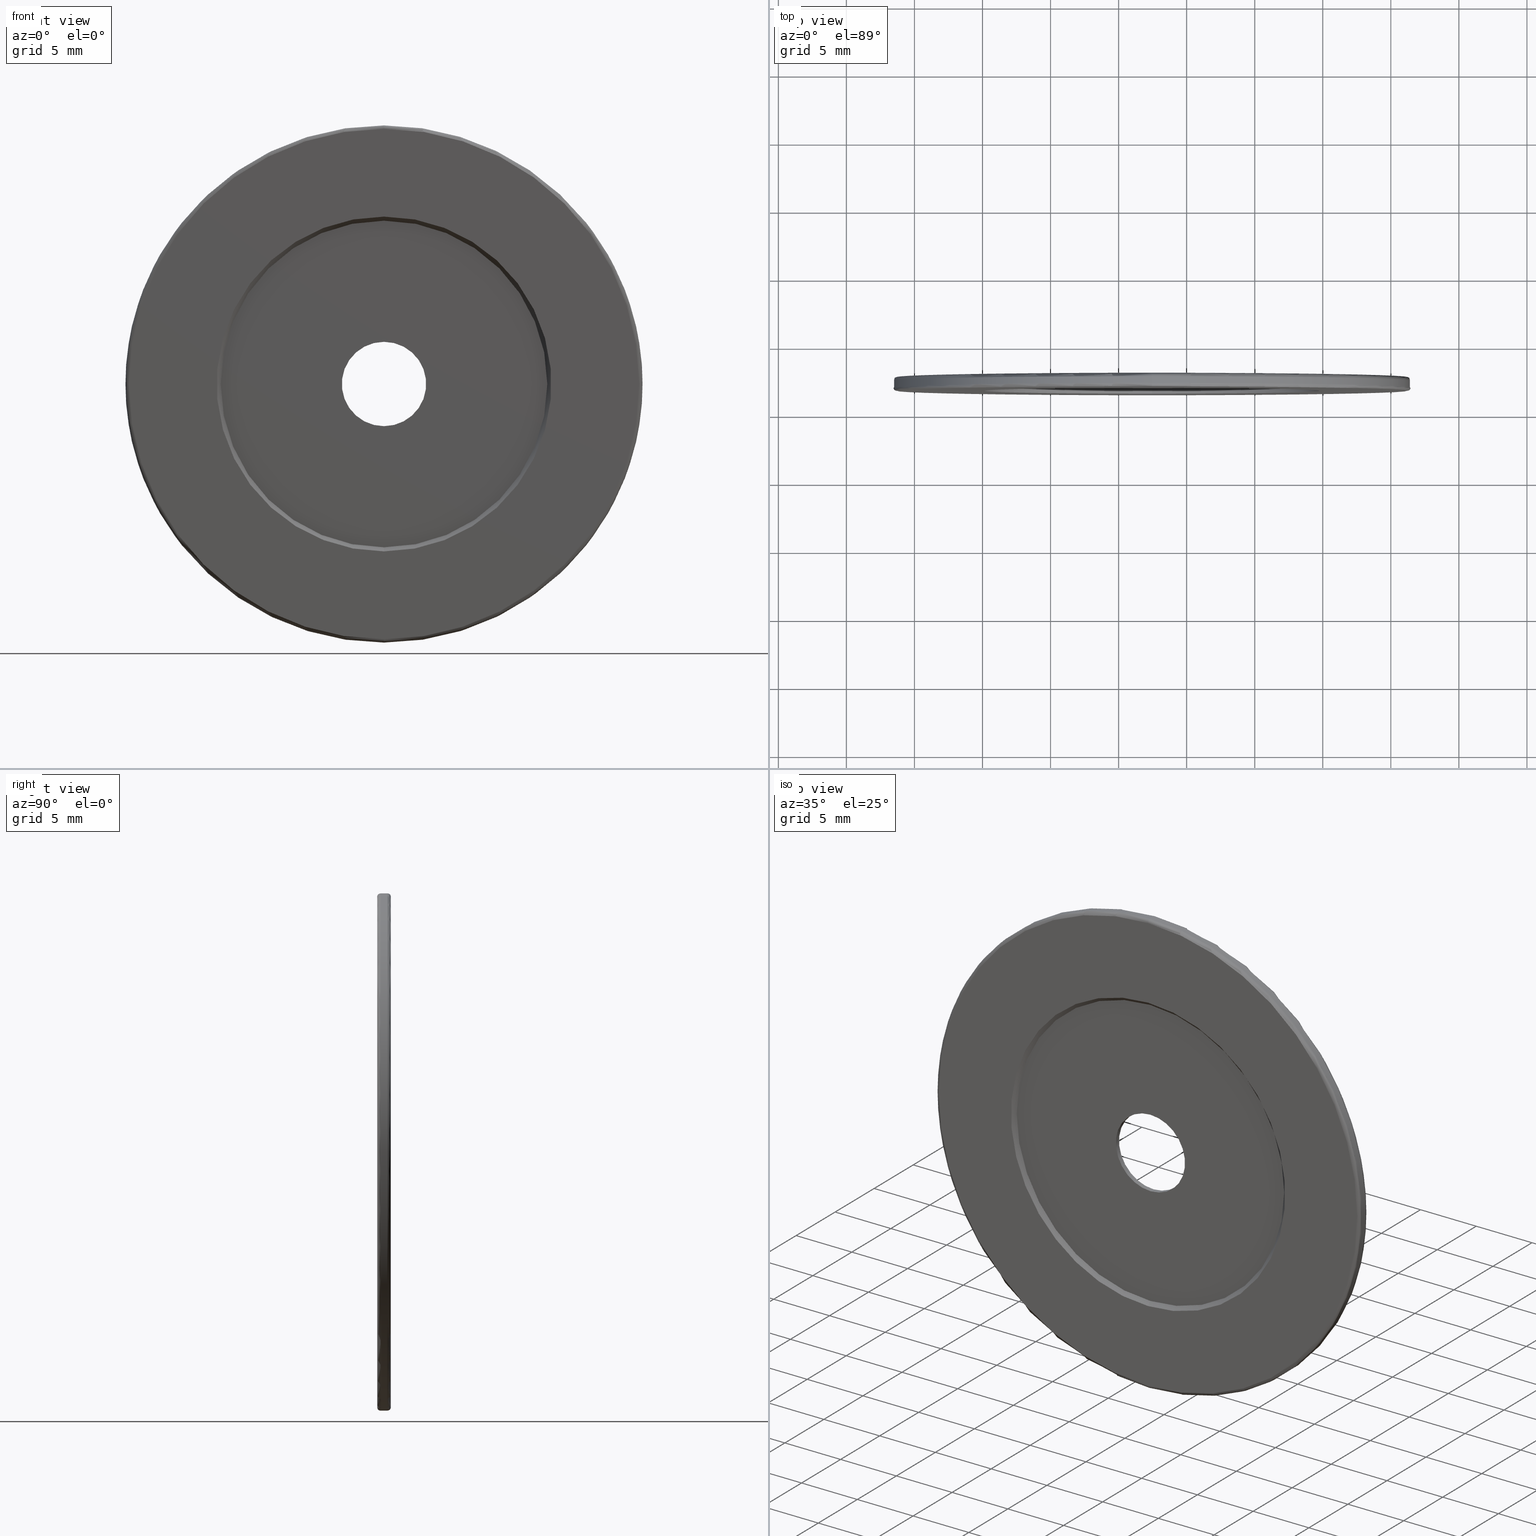
[diagram: canonical four-view strip — front | top / right | iso, engineering-drawing reading convention]
A machine part, canonical four-view strip (front | top / right | iso — engineering-drawing reading convention). The complete STEP part file that produces these views, byte-faithful:
ISO-10303-21;
HEADER;
FILE_DESCRIPTION (( 'STEP AP203' ),
    '1' );
FILE_NAME ('1.4.2.114_ZGH-38-DK1.STEP',
    '2024-04-06T05:19:16',
    ( '' ),
    ( '' ),
    'SwSTEP 2.0',
    'SolidWorks 2021',
    '' );
FILE_SCHEMA (( 'CONFIG_CONTROL_DESIGN' ));
ENDSEC;

DATA;
#1 = APPROVAL_ROLE ( '' ) ;
#2 = DIRECTION ( 'NONE',  ( 0.000000000000000000, 0.000000000000000000, 1.000000000000000000 ) ) ;
#3 = PRODUCT_RELATED_PRODUCT_CATEGORY ( 'detail', '', ( #23 ) ) ;
#4 = APPROVAL_DATE_TIME ( #122, #365 ) ;
#5 = AXIS2_PLACEMENT_3D ( 'NONE', #384, #288, #250 ) ;
#6 = DIRECTION ( 'NONE',  ( 0.000000000000000000, 0.000000000000000000, 1.000000000000000000 ) ) ;
#7 = AXIS2_PLACEMENT_3D ( 'NONE', #192, #509, #507 ) ;
#8 = APPLICATION_PROTOCOL_DEFINITION ( 'international standard', 'config_control_design', 1994, #498 ) ;
#9 = FACE_BOUND ( 'NONE', #230, .T. ) ;
#10 = DIRECTION ( 'NONE',  ( 0.000000000000000000, 0.000000000000000000, 1.000000000000000000 ) ) ;
#11 = ORIENTED_EDGE ( 'NONE', *, *, #379, .T. ) ;
#12 = CYLINDRICAL_SURFACE ( 'NONE', #166, 3.099999999999998757 ) ;
#13 = CC_DESIGN_PERSON_AND_ORGANIZATION_ASSIGNMENT ( #359, #169, ( #23 ) ) ;
#14 = DIRECTION ( 'NONE',  ( 0.000000000000000000, 1.000000000000000000, 0.000000000000000000 ) ) ;
#15 = ADVANCED_FACE ( 'NONE', ( #404, #358 ), #411, .T. ) ;
#16 = CARTESIAN_POINT ( 'NONE',  ( -7.546808913101044958, -3.143595127302728276, 19.00000000000000000 ) ) ;
#17 = SHAPE_DEFINITION_REPRESENTATION ( #424, #98 ) ;
#18 = DIRECTION ( 'NONE',  ( 0.000000000000000000, 1.000000000000000000, 0.000000000000000000 ) ) ;
#19 = ORIENTED_EDGE ( 'NONE', *, *, #33, .F. ) ;
#20 = EDGE_CURVE ( 'NONE', #417, #117, #195, .T. ) ;
#21 = APPROVAL_STATUS ( 'not_yet_approved' ) ;
#22 = CIRCLE ( 'NONE', #47, 12.00000000000000355 ) ;
#23 = PRODUCT ( '1.4.2.114_ZGH-38-DK1', '1.4.2.114_ZGH-38-DK1', '', ( #401 ) ) ;
#24 = ORGANIZATION ( 'δָ��', 'δָ��', '' ) ;
#25 = DIRECTION ( 'NONE',  ( 8.659560562354833018E-17, 0.7071067811865556774, -0.7071067811865393571 ) ) ;
#26 = EDGE_CURVE ( 'NONE', #472, #430, #405, .T. ) ;
#27 = PERSON_AND_ORGANIZATION ( #272, #24 ) ;
#28 = DIRECTION ( 'NONE',  ( 0.000000000000000000, 0.000000000000000000, 1.000000000000000000 ) ) ;
#29 = DIRECTION ( 'NONE',  ( -0.000000000000000000, 1.000000000000000000, -0.000000000000000000 ) ) ;
#30 = ORIENTED_EDGE ( 'NONE', *, *, #329, .F. ) ;
#31 = DIRECTION ( 'NONE',  ( 0.000000000000000000, 0.000000000000000000, 1.000000000000000000 ) ) ;
#32 = CC_DESIGN_APPROVAL ( #365, ( #372 ) ) ;
#33 = EDGE_CURVE ( 'NONE', #472, #256, #203, .T. ) ;
#34 = ORIENTED_EDGE ( 'NONE', *, *, #227, .F. ) ;
#35 = DIRECTION ( 'NONE',  ( -0.000000000000000000, -1.000000000000000000, -0.000000000000000000 ) ) ;
#36 = EDGE_LOOP ( 'NONE', ( #271, #349, #466, #249 ) ) ;
#37 = CARTESIAN_POINT ( 'NONE',  ( -7.546808913101048510, -3.393595127302727832, 38.00000000000000000 ) ) ;
#38 = ORIENTED_EDGE ( 'NONE', *, *, #26, .T. ) ;
#39 = ADVANCED_FACE ( 'NONE', ( #330, #208 ), #413, .T. ) ;
#40 = CIRCLE ( 'NONE', #90, 3.099999999999998757 ) ;
#41 = DIRECTION ( 'NONE',  ( 0.000000000000000000, 1.000000000000000000, 0.000000000000000000 ) ) ;
#42 = AXIS2_PLACEMENT_3D ( 'NONE', #197, #273, #511 ) ;
#43 = ORIENTED_EDGE ( 'NONE', *, *, #453, .F. ) ;
#44 = VERTEX_POINT ( 'NONE', #286 ) ;
#45 =( NAMED_UNIT ( * ) PLANE_ANGLE_UNIT ( ) SI_UNIT ( $, .RADIAN. ) );
#46 = DIRECTION ( 'NONE',  ( 0.000000000000000000, -1.000000000000000000, 0.000000000000000000 ) ) ;
#47 = AXIS2_PLACEMENT_3D ( 'NONE', #52, #284, #449 ) ;
#48 = ORIENTED_EDGE ( 'NONE', *, *, #94, .T. ) ;
#49 = ADVANCED_FACE ( 'NONE', ( #483 ), #370, .T. ) ;
#50 =( GEOMETRIC_REPRESENTATION_CONTEXT ( 3 ) GLOBAL_UNCERTAINTY_ASSIGNED_CONTEXT ( ( #100 ) ) GLOBAL_UNIT_ASSIGNED_CONTEXT ( ( #490, #45, #204 ) ) REPRESENTATION_CONTEXT ( 'NONE', 'WORKASPACE' ) );
#51 = DIRECTION ( 'NONE',  ( 0.000000000000000000, 0.000000000000000000, 1.000000000000000000 ) ) ;
#52 = CARTESIAN_POINT ( 'NONE',  ( -7.546808913101048510, -2.693595127302727654, 38.00000000000000000 ) ) ;
#53 = EDGE_CURVE ( 'NONE', #74, #420, #452, .T. ) ;
#54 = COORDINATED_UNIVERSAL_TIME_OFFSET ( 8, 0, .AHEAD. ) ;
#55 = CARTESIAN_POINT ( 'NONE',  ( -7.546808913101048510, -2.393595127302727832, 38.00000000000000000 ) ) ;
#56 = EDGE_CURVE ( 'NONE', #112, #440, #408, .T. ) ;
#57 = DATE_AND_TIME ( #246, #149 ) ;
#58 = DIRECTION ( 'NONE',  ( -0.000000000000000000, -1.000000000000000000, -0.000000000000000000 ) ) ;
#59 = LINE ( 'NONE', #175, #431 ) ;
#60 = CC_DESIGN_DATE_AND_TIME_ASSIGNMENT ( #242, #407, ( #383 ) ) ;
#61 = DIRECTION ( 'NONE',  ( -0.000000000000000000, -1.000000000000000000, -0.000000000000000000 ) ) ;
#62 = VERTEX_POINT ( 'NONE', #322 ) ;
#63 = APPROVAL_PERSON_ORGANIZATION ( #495, #306, #415 ) ;
#64 = FACE_OUTER_BOUND ( 'NONE', #346, .T. ) ;
#65 = AXIS2_PLACEMENT_3D ( 'NONE', #459, #457, #28 ) ;
#66 = CIRCLE ( 'NONE', #266, 18.99999999999999645 ) ;
#67 = PERSON_AND_ORGANIZATION_ROLE ( 'design_supplier' ) ;
#68 = VECTOR ( 'NONE', #429, 1000.000000000000000 ) ;
#69 = FACE_OUTER_BOUND ( 'NONE', #158, .T. ) ;
#70 = ORIENTED_EDGE ( 'NONE', *, *, #56, .F. ) ;
#71 = CARTESIAN_POINT ( 'NONE',  ( -7.546808913101048510, -3.143595127302728276, 38.00000000000000000 ) ) ;
#72 = ORIENTED_EDGE ( 'NONE', *, *, #179, .T. ) ;
#73 = LINE ( 'NONE', #188, #267 ) ;
#74 = VERTEX_POINT ( 'NONE', #127 ) ;
#75 = AXIS2_PLACEMENT_3D ( 'NONE', #339, #373, #145 ) ;
#76 = CARTESIAN_POINT ( 'NONE',  ( -7.546808913101048510, -2.693595127302736536, 50.00000000000000000 ) ) ;
#77 = AXIS2_PLACEMENT_3D ( 'NONE', #363, #448, #92 ) ;
#78 = EDGE_LOOP ( 'NONE', ( #30, #232, #34, #378 ) ) ;
#79 = DIRECTION ( 'NONE',  ( 0.000000000000000000, 0.000000000000000000, 1.000000000000000000 ) ) ;
#80 = ORIENTED_EDGE ( 'NONE', *, *, #186, .T. ) ;
#81 = DIRECTION ( 'NONE',  ( 0.000000000000000000, 0.000000000000000000, -1.000000000000000000 ) ) ;
#82 = EDGE_LOOP ( 'NONE', ( #264, #38 ) ) ;
#83 = CYLINDRICAL_SURFACE ( 'NONE', #464, 19.00000000000000000 ) ;
#84 = AXIS2_PLACEMENT_3D ( 'NONE', #502, #109, #393 ) ;
#85 = ORIENTED_EDGE ( 'NONE', *, *, #385, .F. ) ;
#86 = DIRECTION ( 'NONE',  ( 0.000000000000000000, 0.000000000000000000, -1.000000000000000000 ) ) ;
#87 = CARTESIAN_POINT ( 'NONE',  ( -7.546808913101048510, -2.643595127302727832, 56.74999999999999289 ) ) ;
#88 = CARTESIAN_POINT ( 'NONE',  ( -7.546808913101048510, -3.393595127302727832, 38.00000000000000000 ) ) ;
#89 = CARTESIAN_POINT ( 'NONE',  ( -7.546808913101048510, -3.093595127302728010, 25.99999999999999645 ) ) ;
#90 = AXIS2_PLACEMENT_3D ( 'NONE', #335, #99, #297 ) ;
#91 = DIRECTION ( 'NONE',  ( 0.000000000000000000, 1.000000000000000000, 0.000000000000000000 ) ) ;
#92 = DIRECTION ( 'NONE',  ( 1.000000000000000000, 0.000000000000000000, 0.000000000000000000 ) ) ;
#93 = CARTESIAN_POINT ( 'NONE',  ( -7.546808913101046734, -3.093595127302728010, 50.00000000000000000 ) ) ;
#94 = EDGE_CURVE ( 'NONE', #440, #178, #462, .T. ) ;
#95 = PERSON_AND_ORGANIZATION ( #272, #24 ) ;
#96 = DIRECTION ( 'NONE',  ( 0.000000000000000000, 0.000000000000000000, -1.000000000000000000 ) ) ;
#97 = DIRECTION ( 'NONE',  ( -0.000000000000000000, 1.000000000000000000, -0.000000000000000000 ) ) ;
#98 = MANIFOLD_SURFACE_SHAPE_REPRESENTATION ( '1.4.2.114_ZGH-38-DK1', ( #316, #77 ), #50 ) ;
#99 = DIRECTION ( 'NONE',  ( -0.000000000000000000, 1.000000000000000000, -0.000000000000000000 ) ) ;
#100 = UNCERTAINTY_MEASURE_WITH_UNIT (LENGTH_MEASURE( 1.000000000000000082E-05 ), #490, 'distance_accuracy_value', 'NONE');
#101 = ORIENTED_EDGE ( 'NONE', *, *, #506, .F. ) ;
#102 = DIRECTION ( 'NONE',  ( 0.000000000000000000, 0.000000000000000000, 1.000000000000000000 ) ) ;
#103 = CARTESIAN_POINT ( 'NONE',  ( -7.546808913101048510, -2.393595127302727832, 38.00000000000000000 ) ) ;
#104 = AXIS2_PLACEMENT_3D ( 'NONE', #142, #107, #332 ) ;
#105 = AXIS2_PLACEMENT_3D ( 'NONE', #395, #300, #345 ) ;
#106 = AXIS2_PLACEMENT_3D ( 'NONE', #118, #41, #259 ) ;
#107 = DIRECTION ( 'NONE',  ( 0.000000000000000000, 1.000000000000000000, 0.000000000000000000 ) ) ;
#108 = EDGE_CURVE ( 'NONE', #121, #308, #362, .T. ) ;
#109 = DIRECTION ( 'NONE',  ( 0.000000000000000000, 1.000000000000000000, 0.000000000000000000 ) ) ;
#110 = ORIENTED_EDGE ( 'NONE', *, *, #108, .F. ) ;
#111 = CARTESIAN_POINT ( 'NONE',  ( -7.546808913101045846, -2.643595127302727832, 56.99999999999999289 ) ) ;
#112 = VERTEX_POINT ( 'NONE', #247 ) ;
#113 = OPEN_SHELL ( 'NONE', ( #213, #427, #441, #49, #200, #409, #15, #218, #126, #184, #493, #265, #39, #234, #141, #512 ) ) ;
#114 = AXIS2_PLACEMENT_3D ( 'NONE', #71, #187, #231 ) ;
#115 = DIRECTION ( 'NONE',  ( 0.000000000000000000, 0.000000000000000000, 1.000000000000000000 ) ) ;
#116 = APPROVAL_PERSON_ORGANIZATION ( #323, #340, #446 ) ;
#117 = VERTEX_POINT ( 'NONE', #240 ) ;
#118 = CARTESIAN_POINT ( 'NONE',  ( -7.546808913101048510, -2.643595127302727832, 38.00000000000000000 ) ) ;
#119 = VERTEX_POINT ( 'NONE', #442 ) ;
#120 = LINE ( 'NONE', #355, #68 ) ;
#121 = VERTEX_POINT ( 'NONE', #206 ) ;
#122 = DATE_AND_TIME ( #317, #416 ) ;
#123 = CIRCLE ( 'NONE', #84, 3.099999999999998757 ) ;
#124 = APPROVAL_PERSON_ORGANIZATION ( #399, #365, #1 ) ;
#125 = DIRECTION ( 'NONE',  ( 1.000000000000000000, -0.000000000000000000, 1.224646799147353207E-16 ) ) ;
#126 = ADVANCED_FACE ( 'NONE', ( #364, #9 ), #168, .F. ) ;
#127 = CARTESIAN_POINT ( 'NONE',  ( -7.546808913101046734, -3.393595127302727832, 50.29999999999999716 ) ) ;
#128 = CARTESIAN_POINT ( 'NONE',  ( -7.546808913101048510, -3.393595127302727832, 38.00000000000000000 ) ) ;
#129 = DIRECTION ( 'NONE',  ( 0.000000000000000000, -0.000000000000000000, 1.000000000000000000 ) ) ;
#130 = AXIS2_PLACEMENT_3D ( 'NONE', #428, #219, #338 ) ;
#131 = EDGE_CURVE ( 'NONE', #155, #119, #22, .T. ) ;
#132 = CARTESIAN_POINT ( 'NONE',  ( -7.546808913101048510, -3.393595127302727832, 38.00000000000000000 ) ) ;
#133 = AXIS2_PLACEMENT_3D ( 'NONE', #504, #223, #467 ) ;
#134 = AXIS2_PLACEMENT_3D ( 'NONE', #403, #484, #486 ) ;
#135 = EDGE_LOOP ( 'NONE', ( #137, #477, #390, #225 ) ) ;
#136 = DIRECTION ( 'NONE',  ( -0.000000000000000000, 1.000000000000000000, -0.000000000000000000 ) ) ;
#137 = ORIENTED_EDGE ( 'NONE', *, *, #248, .T. ) ;
#138 = AXIS2_PLACEMENT_3D ( 'NONE', #463, #97, #212 ) ;
#139 = DIRECTION ( 'NONE',  ( 0.000000000000000000, 0.000000000000000000, 1.000000000000000000 ) ) ;
#140 = VERTEX_POINT ( 'NONE', #93 ) ;
#141 = ADVANCED_FACE ( 'NONE', ( #181, #64 ), #144, .T. ) ;
#142 = CARTESIAN_POINT ( 'NONE',  ( -7.546808913101048510, -2.693595127302727654, 38.00000000000000000 ) ) ;
#143 = PERSON_AND_ORGANIZATION_ROLE ( 'classification_officer' ) ;
#144 = PLANE ( 'NONE',  #104 ) ;
#145 = DIRECTION ( 'NONE',  ( 0.000000000000000000, 0.000000000000000000, 1.000000000000000000 ) ) ;
#146 = ORIENTED_EDGE ( 'NONE', *, *, #94, .F. ) ;
#147 = AXIS2_PLACEMENT_3D ( 'NONE', #55, #91, #129 ) ;
#148 = CONICAL_SURFACE ( 'NONE', #283, 12.00000000000000355, 0.7853981633974367327 ) ;
#149 = LOCAL_TIME ( 13, 19, 16.00000000000000000, #376 ) ;
#150 = FACE_OUTER_BOUND ( 'NONE', #135, .T. ) ;
#151 = ORIENTED_EDGE ( 'NONE', *, *, #343, .T. ) ;
#152 = DIRECTION ( 'NONE',  ( -0.000000000000000000, -1.000000000000000000, -0.000000000000000000 ) ) ;
#153 = ORIENTED_EDGE ( 'NONE', *, *, #227, .T. ) ;
#154 = CARTESIAN_POINT ( 'NONE',  ( -7.546808913101048510, -3.093595127302728010, 38.00000000000000000 ) ) ;
#155 = VERTEX_POINT ( 'NONE', #293 ) ;
#156 = TOROIDAL_SURFACE ( 'NONE', #217, 18.75000000000000000, 0.2500000000000000000 ) ;
#157 = CARTESIAN_POINT ( 'NONE',  ( -7.546808913101045846, -2.393595127302727832, 19.25000000000000000 ) ) ;
#158 = EDGE_LOOP ( 'NONE', ( #19, #43, #151, #387 ) ) ;
#159 = DIRECTION ( 'NONE',  ( -0.000000000000000000, -1.000000000000000000, -0.000000000000000000 ) ) ;
#160 = ORIENTED_EDGE ( 'NONE', *, *, #261, .T. ) ;
#161 = COORDINATED_UNIVERSAL_TIME_OFFSET ( 8, 0, .AHEAD. ) ;
#162 = CARTESIAN_POINT ( 'NONE',  ( -7.546808913101045846, -2.643595127302727832, 19.25000000000000000 ) ) ;
#163 = EDGE_CURVE ( 'NONE', #155, #277, #381, .T. ) ;
#164 = AXIS2_PLACEMENT_3D ( 'NONE', #491, #58, #96 ) ;
#165 = COORDINATED_UNIVERSAL_TIME_OFFSET ( 8, 0, .AHEAD. ) ;
#166 = AXIS2_PLACEMENT_3D ( 'NONE', #128, #366, #51 ) ;
#167 = DIRECTION ( 'NONE',  ( -0.000000000000000000, 1.000000000000000000, -0.000000000000000000 ) ) ;
#168 = PLANE ( 'NONE',  #233 ) ;
#169 = PERSON_AND_ORGANIZATION_ROLE ( 'design_owner' ) ;
#170 = CARTESIAN_POINT ( 'NONE',  ( -7.546808913101048510, -3.393595127302727832, 34.89999999999999858 ) ) ;
#171 = CALENDAR_DATE ( 2024, 6, 4 ) ;
#172 = AXIS2_PLACEMENT_3D ( 'NONE', #103, #492, #139 ) ;
#173 = DIRECTION ( 'NONE',  ( 0.000000000000000000, 0.000000000000000000, -1.000000000000000000 ) ) ;
#174 = AXIS2_PLACEMENT_3D ( 'NONE', #419, #61, #215 ) ;
#175 = CARTESIAN_POINT ( 'NONE',  ( -7.546808913101048510, -3.393595127302727832, 41.09999999999999432 ) ) ;
#176 = SECURITY_CLASSIFICATION_LEVEL ( 'unclassified' ) ;
#177 = FACE_OUTER_BOUND ( 'NONE', #191, .T. ) ;
#178 = VERTEX_POINT ( 'NONE', #185 ) ;
#179 = EDGE_CURVE ( 'NONE', #210, #112, #40, .T. ) ;
#180 = AXIS2_PLACEMENT_3D ( 'NONE', #450, #325, #487 ) ;
#181 = FACE_BOUND ( 'NONE', #334, .T. ) ;
#182 = CARTESIAN_POINT ( 'NONE',  ( -7.546808913101048510, -3.393595127302727832, 38.00000000000000000 ) ) ;
#183 = DESIGN_CONTEXT ( 'detailed design', #498, 'design' ) ;
#184 = ADVANCED_FACE ( 'NONE', ( #69 ), #380, .T. ) ;
#185 = CARTESIAN_POINT ( 'NONE',  ( -7.546808913101048510, -2.693595127302727654, 41.09999999999999432 ) ) ;
#186 = EDGE_CURVE ( 'NONE', #140, #503, #224, .T. ) ;
#187 = DIRECTION ( 'NONE',  ( 0.000000000000000000, 1.000000000000000000, 0.000000000000000000 ) ) ;
#188 = CARTESIAN_POINT ( 'NONE',  ( -7.546808913101045846, -2.393595127302727832, 56.99999999999999289 ) ) ;
#189 = EDGE_LOOP ( 'NONE', ( #299, #80, #289, #216 ) ) ;
#190 = CARTESIAN_POINT ( 'NONE',  ( -7.546808913101045846, -3.393595127302727832, 19.25000000000000000 ) ) ;
#191 = EDGE_LOOP ( 'NONE', ( #194, #260, #341, #245 ) ) ;
#192 = CARTESIAN_POINT ( 'NONE',  ( -7.546808913101048510, -3.143595127302728276, 56.74999999999999289 ) ) ;
#193 = CC_DESIGN_APPROVAL ( #306, ( #320 ) ) ;
#194 = ORIENTED_EDGE ( 'NONE', *, *, #26, .F. ) ;
#195 = CIRCLE ( 'NONE', #422, 0.2500000000000002220 ) ;
#196 = CIRCLE ( 'NONE', #382, 12.30000000000000604 ) ;
#197 = CARTESIAN_POINT ( 'NONE',  ( -7.546808913101048510, -3.143595127302728276, 38.00000000000000000 ) ) ;
#198 = EDGE_LOOP ( 'NONE', ( #402, #301, #269, #220 ) ) ;
#199 = APPLICATION_PROTOCOL_DEFINITION ( 'international standard', 'config_control_design', 1994, #309 ) ;
#200 = ADVANCED_FACE ( 'NONE', ( #177 ), #156, .T. ) ;
#201 = ORIENTED_EDGE ( 'NONE', *, *, #248, .F. ) ;
#202 = DIRECTION ( 'NONE',  ( 0.000000000000000000, 0.000000000000000000, 1.000000000000000000 ) ) ;
#203 = CIRCLE ( 'NONE', #326, 0.2500000000000002220 ) ;
#204 =( NAMED_UNIT ( * ) SI_UNIT ( $, .STERADIAN. ) SOLID_ANGLE_UNIT ( ) );
#205 = CIRCLE ( 'NONE', #489, 18.74999999999999645 ) ;
#206 = CARTESIAN_POINT ( 'NONE',  ( -7.546808913101048510, -2.643595127302727832, 19.00000000000000000 ) ) ;
#207 = APPROVAL_STATUS ( 'not_yet_approved' ) ;
#208 = FACE_BOUND ( 'NONE', #392, .T. ) ;
#209 = DIRECTION ( 'NONE',  ( -0.000000000000000000, -1.000000000000000000, -0.000000000000000000 ) ) ;
#210 = VERTEX_POINT ( 'NONE', #451 ) ;
#211 = DATE_AND_TIME ( #497, #461 ) ;
#212 = DIRECTION ( 'NONE',  ( 0.000000000000000000, 0.000000000000000000, 1.000000000000000000 ) ) ;
#213 = ADVANCED_FACE ( 'NONE', ( #252 ), #494, .F. ) ;
#214 = CARTESIAN_POINT ( 'NONE',  ( -7.546808913101046734, -2.393595127302727832, 25.69999999999999218 ) ) ;
#215 = DIRECTION ( 'NONE',  ( 0.000000000000000000, 0.000000000000000000, 1.000000000000000000 ) ) ;
#216 = ORIENTED_EDGE ( 'NONE', *, *, #53, .F. ) ;
#217 = AXIS2_PLACEMENT_3D ( 'NONE', #500, #496, #102 ) ;
#218 = ADVANCED_FACE ( 'NONE', ( #499 ), #488, .F. ) ;
#219 = DIRECTION ( 'NONE',  ( -0.000000000000000000, -1.000000000000000000, -0.000000000000000000 ) ) ;
#220 = ORIENTED_EDGE ( 'NONE', *, *, #478, .F. ) ;
#221 = DIRECTION ( 'NONE',  ( 0.000000000000000000, 1.000000000000000000, 0.000000000000000000 ) ) ;
#222 = ORIENTED_EDGE ( 'NONE', *, *, #303, .T. ) ;
#223 = DIRECTION ( 'NONE',  ( 0.000000000000000000, 1.000000000000000000, 0.000000000000000000 ) ) ;
#224 = CIRCLE ( 'NONE', #5, 12.00000000000000355 ) ;
#225 = ORIENTED_EDGE ( 'NONE', *, *, #418, .F. ) ;
#226 = DIRECTION ( 'NONE',  ( 0.000000000000000000, 0.7071067811865556774, 0.7071067811865393571 ) ) ;
#227 = EDGE_CURVE ( 'NONE', #117, #308, #396, .T. ) ;
#228 = ORIENTED_EDGE ( 'NONE', *, *, #179, .F. ) ;
#229 = DIRECTION ( 'NONE',  ( 0.000000000000000000, -0.7071067811865536790, -0.7071067811865414665 ) ) ;
#230 = EDGE_LOOP ( 'NONE', ( #258, #292 ) ) ;
#231 = DIRECTION ( 'NONE',  ( 0.000000000000000000, 0.000000000000000000, 1.000000000000000000 ) ) ;
#232 = ORIENTED_EDGE ( 'NONE', *, *, #108, .T. ) ;
#233 = AXIS2_PLACEMENT_3D ( 'NONE', #132, #485, #244 ) ;
#234 = ADVANCED_FACE ( 'NONE', ( #254 ), #388, .F. ) ;
#235 = AXIS2_PLACEMENT_3D ( 'NONE', #374, #18, #455 ) ;
#236 = ORIENTED_EDGE ( 'NONE', *, *, #20, .T. ) ;
#237 = CC_DESIGN_PERSON_AND_ORGANIZATION_ASSIGNMENT ( #27, #143, ( #320 ) ) ;
#238 = CARTESIAN_POINT ( 'NONE',  ( -7.546808913101048510, -3.093595127302728010, 38.00000000000000000 ) ) ;
#239 = CARTESIAN_POINT ( 'NONE',  ( -7.546808913101048510, -2.393595127302727832, 38.00000000000000000 ) ) ;
#240 = CARTESIAN_POINT ( 'NONE',  ( -7.546808913101048510, -2.393595127302727832, 56.74999999999999289 ) ) ;
#241 = AXIS2_PLACEMENT_3D ( 'NONE', #479, #447, #2 ) ;
#242 = DATE_AND_TIME ( #443, #257 ) ;
#243 = CIRCLE ( 'NONE', #42, 18.99999999999999645 ) ;
#244 = DIRECTION ( 'NONE',  ( 0.000000000000000000, -0.000000000000000000, 1.000000000000000000 ) ) ;
#245 = ORIENTED_EDGE ( 'NONE', *, *, #343, .F. ) ;
#246 = CALENDAR_DATE ( 2024, 6, 4 ) ;
#247 = CARTESIAN_POINT ( 'NONE',  ( -7.546808913101048510, -3.093595127302728010, 34.89999999999999858 ) ) ;
#248 = EDGE_CURVE ( 'NONE', #503, #140, #296, .T. ) ;
#249 = ORIENTED_EDGE ( 'NONE', *, *, #311, .T. ) ;
#250 = DIRECTION ( 'NONE',  ( 0.000000000000000000, 0.000000000000000000, 1.000000000000000000 ) ) ;
#251 = CC_DESIGN_DATE_AND_TIME_ASSIGNMENT ( #57, #458, ( #320 ) ) ;
#252 = FACE_OUTER_BOUND ( 'NONE', #505, .T. ) ;
#253 = VECTOR ( 'NONE', #167, 1000.000000000000000 ) ;
#254 = FACE_OUTER_BOUND ( 'NONE', #510, .T. ) ;
#255 = CIRCLE ( 'NONE', #133, 12.00000000000000355 ) ;
#256 = VERTEX_POINT ( 'NONE', #16 ) ;
#257 = LOCAL_TIME ( 13, 19, 16.00000000000000000, #165 ) ;
#258 = ORIENTED_EDGE ( 'NONE', *, *, #313, .T. ) ;
#259 = DIRECTION ( 'NONE',  ( 0.000000000000000000, 0.000000000000000000, 1.000000000000000000 ) ) ;
#260 = ORIENTED_EDGE ( 'NONE', *, *, #33, .T. ) ;
#261 = EDGE_CURVE ( 'NONE', #210, #178, #59, .T. ) ;
#262 = DIRECTION ( 'NONE',  ( -0.000000000000000000, -1.000000000000000000, -0.000000000000000000 ) ) ;
#263 = TOROIDAL_SURFACE ( 'NONE', #235, 18.75000000000000000, 0.2500000000000000000 ) ;
#264 = ORIENTED_EDGE ( 'NONE', *, *, #453, .T. ) ;
#265 = ADVANCED_FACE ( 'NONE', ( #290 ), #263, .T. ) ;
#266 = AXIS2_PLACEMENT_3D ( 'NONE', #348, #35, #437 ) ;
#267 = VECTOR ( 'NONE', #152, 1000.000000000000000 ) ;
#268 = FACE_OUTER_BOUND ( 'NONE', #198, .T. ) ;
#269 = ORIENTED_EDGE ( 'NONE', *, *, #480, .F. ) ;
#270 = CC_DESIGN_PERSON_AND_ORGANIZATION_ASSIGNMENT ( #337, #331, ( #372 ) ) ;
#271 = ORIENTED_EDGE ( 'NONE', *, *, #469, .F. ) ;
#272 = PERSON ( 'δָ��', 'δָ��', 'δָ��', ('δָ��'), ('δָ��'), ('δָ��') ) ;
#273 = DIRECTION ( 'NONE',  ( 0.000000000000000000, 1.000000000000000000, 0.000000000000000000 ) ) ;
#274 = EDGE_LOOP ( 'NONE', ( #445, #475, #375, #508 ) ) ;
#275 = CIRCLE ( 'NONE', #7, 0.2500000000000002220 ) ;
#276 = APPROVAL_DATE_TIME ( #328, #340 ) ;
#277 = VERTEX_POINT ( 'NONE', #214 ) ;
#278 = PERSON_AND_ORGANIZATION ( #272, #24 ) ;
#279 = DIRECTION ( 'NONE',  ( 0.000000000000000000, 0.000000000000000000, 1.000000000000000000 ) ) ;
#280 = DIRECTION ( 'NONE',  ( -1.000000000000000000, 0.000000000000000000, 0.000000000000000000 ) ) ;
#281 = AXIS2_PLACEMENT_3D ( 'NONE', #162, #125, #173 ) ;
#282 = AXIS2_PLACEMENT_3D ( 'NONE', #37, #221, #79 ) ;
#283 = AXIS2_PLACEMENT_3D ( 'NONE', #476, #465, #389 ) ;
#284 = DIRECTION ( 'NONE',  ( 0.000000000000000000, 1.000000000000000000, 0.000000000000000000 ) ) ;
#285 = EDGE_CURVE ( 'NONE', #417, #121, #336, .T. ) ;
#286 = CARTESIAN_POINT ( 'NONE',  ( -7.546808913101048510, -3.143595127302728276, 56.99999999999999289 ) ) ;
#287 = EDGE_CURVE ( 'NONE', #121, #256, #377, .T. ) ;
#288 = DIRECTION ( 'NONE',  ( -0.000000000000000000, 1.000000000000000000, -0.000000000000000000 ) ) ;
#289 = ORIENTED_EDGE ( 'NONE', *, *, #418, .T. ) ;
#290 = FACE_OUTER_BOUND ( 'NONE', #433, .T. ) ;
#291 = AXIS2_PLACEMENT_3D ( 'NONE', #154, #29, #81 ) ;
#292 = ORIENTED_EDGE ( 'NONE', *, *, #53, .T. ) ;
#293 = CARTESIAN_POINT ( 'NONE',  ( -7.546808913101046734, -2.693595127302727654, 25.99999999999999645 ) ) ;
#294 = DIRECTION ( 'NONE',  ( -0.000000000000000000, 1.000000000000000000, -0.000000000000000000 ) ) ;
#295 = EDGE_LOOP ( 'NONE', ( #72, #315 ) ) ;
#296 = CIRCLE ( 'NONE', #138, 12.00000000000000355 ) ;
#297 = DIRECTION ( 'NONE',  ( 0.000000000000000000, 0.000000000000000000, -1.000000000000000000 ) ) ;
#298 = CIRCLE ( 'NONE', #114, 18.99999999999999645 ) ;
#299 = ORIENTED_EDGE ( 'NONE', *, *, #460, .F. ) ;
#300 = DIRECTION ( 'NONE',  ( -0.000000000000000000, -1.000000000000000000, -0.000000000000000000 ) ) ;
#301 = ORIENTED_EDGE ( 'NONE', *, *, #163, .T. ) ;
#302 = CARTESIAN_POINT ( 'NONE',  ( -7.546808913101048510, -2.693595127302727654, 34.89999999999999858 ) ) ;
#303 = EDGE_CURVE ( 'NONE', #277, #62, #196, .T. ) ;
#304 = ORIENTED_EDGE ( 'NONE', *, *, #186, .F. ) ;
#305 = CARTESIAN_POINT ( 'NONE',  ( -7.546808913101048510, -3.393595127302727832, 25.69999999999999929 ) ) ;
#306 = APPROVAL ( #21, 'δָ��' ) ;
#307 = AXIS2_PLACEMENT_3D ( 'NONE', #238, #46, #202 ) ;
#308 = VERTEX_POINT ( 'NONE', #157 ) ;
#309 = APPLICATION_CONTEXT ( 'configuration controlled 3d designs of mechanical parts and assemblies' ) ;
#310 = LINE ( 'NONE', #305, #471 ) ;
#311 = EDGE_CURVE ( 'NONE', #256, #44, #243, .T. ) ;
#312 = ORIENTED_EDGE ( 'NONE', *, *, #385, .T. ) ;
#313 = EDGE_CURVE ( 'NONE', #420, #74, #414, .T. ) ;
#314 = CARTESIAN_POINT ( 'NONE',  ( -7.546808913101048510, -3.393595127302727832, 38.00000000000000000 ) ) ;
#315 = ORIENTED_EDGE ( 'NONE', *, *, #361, .T. ) ;
#316 = SHELL_BASED_SURFACE_MODEL ( 'NONE', ( #113 ) );
#317 = CALENDAR_DATE ( 2024, 6, 4 ) ;
#318 = CARTESIAN_POINT ( 'NONE',  ( -7.546808913101045846, -3.143595127302728276, 19.25000000000000000 ) ) ;
#319 = VECTOR ( 'NONE', #25, 1000.000000000000000 ) ;
#320 = SECURITY_CLASSIFICATION ( '', '', #176 ) ;
#321 = CARTESIAN_POINT ( 'NONE',  ( -7.546808913101048510, -2.393595127302727832, 38.00000000000000000 ) ) ;
#322 = CARTESIAN_POINT ( 'NONE',  ( -7.546808913101048510, -2.393595127302727832, 50.30000000000000426 ) ) ;
#323 = PERSON_AND_ORGANIZATION ( #272, #24 ) ;
#324 = ORIENTED_EDGE ( 'NONE', *, *, #163, .F. ) ;
#325 = DIRECTION ( 'NONE',  ( -0.000000000000000000, -1.000000000000000000, -0.000000000000000000 ) ) ;
#326 = AXIS2_PLACEMENT_3D ( 'NONE', #318, #360, #367 ) ;
#327 = CIRCLE ( 'NONE', #291, 3.099999999999998757 ) ;
#328 = DATE_AND_TIME ( #171, #473 ) ;
#329 = EDGE_CURVE ( 'NONE', #121, #417, #66, .T. ) ;
#330 = FACE_OUTER_BOUND ( 'NONE', #400, .T. ) ;
#331 = PERSON_AND_ORGANIZATION_ROLE ( 'creator' ) ;
#332 = DIRECTION ( 'NONE',  ( 0.000000000000000000, -0.000000000000000000, 1.000000000000000000 ) ) ;
#333 = CARTESIAN_POINT ( 'NONE',  ( -7.546808913101046734, -2.693595127302736536, 25.99999999999999645 ) ) ;
#334 = EDGE_LOOP ( 'NONE', ( #85, #146 ) ) ;
#335 = CARTESIAN_POINT ( 'NONE',  ( -7.546808913101048510, -3.093595127302728010, 38.00000000000000000 ) ) ;
#336 = CIRCLE ( 'NONE', #174, 18.99999999999999645 ) ;
#337 = PERSON_AND_ORGANIZATION ( #272, #24 ) ;
#338 = DIRECTION ( 'NONE',  ( 0.000000000000000000, 0.000000000000000000, -1.000000000000000000 ) ) ;
#339 = CARTESIAN_POINT ( 'NONE',  ( -7.546808913101048510, -2.693595127302736536, 38.00000000000000000 ) ) ;
#340 = APPROVAL ( #207, 'δָ��' ) ;
#341 = ORIENTED_EDGE ( 'NONE', *, *, #368, .F. ) ;
#342 = DIRECTION ( 'NONE',  ( -0.000000000000000000, -1.000000000000000000, -0.000000000000000000 ) ) ;
#343 = EDGE_CURVE ( 'NONE', #430, #44, #275, .T. ) ;
#344 = ORIENTED_EDGE ( 'NONE', *, *, #131, .T. ) ;
#345 = DIRECTION ( 'NONE',  ( 0.000000000000000000, 0.000000000000000000, -1.000000000000000000 ) ) ;
#346 = EDGE_LOOP ( 'NONE', ( #11, #344 ) ) ;
#347 = CC_DESIGN_PERSON_AND_ORGANIZATION_ASSIGNMENT ( #95, #67, ( #372 ) ) ;
#348 = CARTESIAN_POINT ( 'NONE',  ( -7.546808913101048510, -2.643595127302727832, 38.00000000000000000 ) ) ;
#349 = ORIENTED_EDGE ( 'NONE', *, *, #285, .T. ) ;
#350 = CC_DESIGN_SECURITY_CLASSIFICATION ( #320, ( #372 ) ) ;
#351 = CARTESIAN_POINT ( 'NONE',  ( -7.546808913101048510, -2.393595127302727832, 19.00000000000000000 ) ) ;
#352 = AXIS2_PLACEMENT_3D ( 'NONE', #182, #294, #421 ) ;
#353 = ORIENTED_EDGE ( 'NONE', *, *, #261, .F. ) ;
#354 = CIRCLE ( 'NONE', #398, 12.30000000000000604 ) ;
#355 = CARTESIAN_POINT ( 'NONE',  ( -7.546808913101046734, -3.393595127302727832, 50.29999999999999716 ) ) ;
#356 = ORIENTED_EDGE ( 'NONE', *, *, #303, .F. ) ;
#357 = APPROVAL_STATUS ( 'not_yet_approved' ) ;
#358 = FACE_BOUND ( 'NONE', #295, .T. ) ;
#359 = PERSON_AND_ORGANIZATION ( #272, #24 ) ;
#360 = DIRECTION ( 'NONE',  ( 1.000000000000000000, -0.000000000000000000, 1.224646799147353207E-16 ) ) ;
#361 = EDGE_CURVE ( 'NONE', #112, #210, #327, .T. ) ;
#362 = CIRCLE ( 'NONE', #281, 0.2500000000000002220 ) ;
#363 = CARTESIAN_POINT ( 'NONE',  ( 0.000000000000000000, 0.000000000000000000, 0.000000000000000000 ) ) ;
#364 = FACE_OUTER_BOUND ( 'NONE', #82, .T. ) ;
#365 = APPROVAL ( #357, 'δָ��' ) ;
#366 = DIRECTION ( 'NONE',  ( -0.000000000000000000, 1.000000000000000000, -0.000000000000000000 ) ) ;
#367 = DIRECTION ( 'NONE',  ( 0.000000000000000000, 0.000000000000000000, -1.000000000000000000 ) ) ;
#368 = EDGE_CURVE ( 'NONE', #44, #256, #298, .T. ) ;
#369 = FACE_OUTER_BOUND ( 'NONE', #36, .T. ) ;
#370 = CYLINDRICAL_SURFACE ( 'NONE', #164, 19.00000000000000000 ) ;
#371 = CONICAL_SURFACE ( 'NONE', #105, 12.29999999999999893, 0.7853981633974396193 ) ;
#372 = PRODUCT_DEFINITION_FORMATION_WITH_SPECIFIED_SOURCE ( '�κ�', '', #23, .NOT_KNOWN. ) ;
#373 = DIRECTION ( 'NONE',  ( 0.000000000000000000, 1.000000000000000000, 0.000000000000000000 ) ) ;
#374 = CARTESIAN_POINT ( 'NONE',  ( -7.546808913101048510, -2.643595127302727832, 38.00000000000000000 ) ) ;
#375 = ORIENTED_EDGE ( 'NONE', *, *, #368, .T. ) ;
#376 = COORDINATED_UNIVERSAL_TIME_OFFSET ( 8, 0, .AHEAD. ) ;
#377 = LINE ( 'NONE', #351, #454 ) ;
#378 = ORIENTED_EDGE ( 'NONE', *, *, #20, .F. ) ;
#379 = EDGE_CURVE ( 'NONE', #119, #155, #255, .T. ) ;
#380 = TOROIDAL_SURFACE ( 'NONE', #65, 18.75000000000000000, 0.2500000000000000000 ) ;
#381 = LINE ( 'NONE', #333, #319 ) ;
#382 = AXIS2_PLACEMENT_3D ( 'NONE', #386, #342, #115 ) ;
#383 = PRODUCT_DEFINITION ( 'δ֪', '', #372, #183 ) ;
#384 = CARTESIAN_POINT ( 'NONE',  ( -7.546808913101048510, -3.093595127302728010, 38.00000000000000000 ) ) ;
#385 = EDGE_CURVE ( 'NONE', #178, #440, #123, .T. ) ;
#386 = CARTESIAN_POINT ( 'NONE',  ( -7.546808913101048510, -2.393595127302727832, 38.00000000000000000 ) ) ;
#387 = ORIENTED_EDGE ( 'NONE', *, *, #311, .F. ) ;
#388 = CONICAL_SURFACE ( 'NONE', #75, 12.00000000000000355, 0.7853981633974367327 ) ;
#389 = DIRECTION ( 'NONE',  ( 0.000000000000000000, 0.000000000000000000, 1.000000000000000000 ) ) ;
#390 = ORIENTED_EDGE ( 'NONE', *, *, #313, .F. ) ;
#391 = CARTESIAN_POINT ( 'NONE',  ( -7.546808913101048510, -3.393595127302727832, 25.69999999999999929 ) ) ;
#392 = EDGE_LOOP ( 'NONE', ( #394, #222 ) ) ;
#393 = DIRECTION ( 'NONE',  ( 0.000000000000000000, 0.000000000000000000, 1.000000000000000000 ) ) ;
#394 = ORIENTED_EDGE ( 'NONE', *, *, #480, .T. ) ;
#395 = CARTESIAN_POINT ( 'NONE',  ( -7.546808913101048510, -3.393595127302727832, 38.00000000000000000 ) ) ;
#396 = CIRCLE ( 'NONE', #172, 18.74999999999999645 ) ;
#397 = ORIENTED_EDGE ( 'NONE', *, *, #478, .T. ) ;
#398 = AXIS2_PLACEMENT_3D ( 'NONE', #239, #482, #10 ) ;
#399 = PERSON_AND_ORGANIZATION ( #272, #24 ) ;
#400 = EDGE_LOOP ( 'NONE', ( #153, #456 ) ) ;
#401 = MECHANICAL_CONTEXT ( 'NONE', #309, 'mechanical' ) ;
#402 = ORIENTED_EDGE ( 'NONE', *, *, #131, .F. ) ;
#403 = CARTESIAN_POINT ( 'NONE',  ( -7.546808913101048510, -2.393595127302727832, 38.00000000000000000 ) ) ;
#404 = FACE_OUTER_BOUND ( 'NONE', #436, .T. ) ;
#405 = CIRCLE ( 'NONE', #180, 18.74999999999999645 ) ;
#406 = CC_DESIGN_APPROVAL ( #340, ( #383 ) ) ;
#407 = DATE_TIME_ROLE ( 'creation_date' ) ;
#408 = LINE ( 'NONE', #170, #253 ) ;
#409 = ADVANCED_FACE ( 'NONE', ( #150 ), #371, .F. ) ;
#410 = FACE_OUTER_BOUND ( 'NONE', #426, .T. ) ;
#411 = PLANE ( 'NONE',  #307 ) ;
#412 = COORDINATED_UNIVERSAL_TIME_OFFSET ( 8, 0, .AHEAD. ) ;
#413 = PLANE ( 'NONE',  #147 ) ;
#414 = CIRCLE ( 'NONE', #282, 12.29999999999999893 ) ;
#415 = APPROVAL_ROLE ( '' ) ;
#416 = LOCAL_TIME ( 13, 19, 16.00000000000000000, #161 ) ;
#417 = VERTEX_POINT ( 'NONE', #111 ) ;
#418 = EDGE_CURVE ( 'NONE', #503, #420, #310, .T. ) ;
#419 = CARTESIAN_POINT ( 'NONE',  ( -7.546808913101048510, -2.643595127302727832, 38.00000000000000000 ) ) ;
#420 = VERTEX_POINT ( 'NONE', #391 ) ;
#421 = DIRECTION ( 'NONE',  ( 0.000000000000000000, 0.000000000000000000, 1.000000000000000000 ) ) ;
#422 = AXIS2_PLACEMENT_3D ( 'NONE', #87, #280, #279 ) ;
#423 = APPROVAL_DATE_TIME ( #211, #306 ) ;
#424 = PRODUCT_DEFINITION_SHAPE ( 'NONE', 'NONE',  #383 ) ;
#425 = TOROIDAL_SURFACE ( 'NONE', #106, 18.75000000000000000, 0.2500000000000000000 ) ;
#426 = EDGE_LOOP ( 'NONE', ( #70, #228, #160, #312 ) ) ;
#427 = ADVANCED_FACE ( 'NONE', ( #268 ), #148, .F. ) ;
#428 = CARTESIAN_POINT ( 'NONE',  ( -7.546808913101048510, -3.393595127302727832, 38.00000000000000000 ) ) ;
#429 = DIRECTION ( 'NONE',  ( 8.659560562354857670E-17, -0.7071067811865536790, 0.7071067811865414665 ) ) ;
#430 = VERTEX_POINT ( 'NONE', #474 ) ;
#431 = VECTOR ( 'NONE', #136, 1000.000000000000000 ) ;
#432 = LINE ( 'NONE', #76, #481 ) ;
#433 = EDGE_LOOP ( 'NONE', ( #110, #513, #236, #101 ) ) ;
#434 = CIRCLE ( 'NONE', #134, 18.74999999999999645 ) ;
#435 = FACE_OUTER_BOUND ( 'NONE', #78, .T. ) ;
#436 = EDGE_LOOP ( 'NONE', ( #201, #304 ) ) ;
#437 = DIRECTION ( 'NONE',  ( 0.000000000000000000, 0.000000000000000000, 1.000000000000000000 ) ) ;
#438 = ORIENTED_EDGE ( 'NONE', *, *, #361, .F. ) ;
#439 = PERSON_AND_ORGANIZATION_ROLE ( 'creator' ) ;
#440 = VERTEX_POINT ( 'NONE', #302 ) ;
#441 = ADVANCED_FACE ( 'NONE', ( #435 ), #425, .T. ) ;
#442 = CARTESIAN_POINT ( 'NONE',  ( -7.546808913101048510, -2.693595127302727654, 50.00000000000000000 ) ) ;
#443 = CALENDAR_DATE ( 2024, 6, 4 ) ;
#444 = CC_DESIGN_PERSON_AND_ORGANIZATION_ASSIGNMENT ( #278, #439, ( #383 ) ) ;
#445 = ORIENTED_EDGE ( 'NONE', *, *, #329, .T. ) ;
#446 = APPROVAL_ROLE ( '' ) ;
#447 = DIRECTION ( 'NONE',  ( 0.000000000000000000, 1.000000000000000000, 0.000000000000000000 ) ) ;
#448 = DIRECTION ( 'NONE',  ( 0.000000000000000000, 0.000000000000000000, 1.000000000000000000 ) ) ;
#449 = DIRECTION ( 'NONE',  ( 0.000000000000000000, 0.000000000000000000, 1.000000000000000000 ) ) ;
#450 = CARTESIAN_POINT ( 'NONE',  ( -7.546808913101048510, -3.393595127302727832, 38.00000000000000000 ) ) ;
#451 = CARTESIAN_POINT ( 'NONE',  ( -7.546808913101048510, -3.093595127302728010, 41.09999999999999432 ) ) ;
#452 = CIRCLE ( 'NONE', #470, 12.29999999999999893 ) ;
#453 = EDGE_CURVE ( 'NONE', #430, #472, #205, .T. ) ;
#454 = VECTOR ( 'NONE', #159, 1000.000000000000000 ) ;
#455 = DIRECTION ( 'NONE',  ( 0.000000000000000000, 0.000000000000000000, 1.000000000000000000 ) ) ;
#456 = ORIENTED_EDGE ( 'NONE', *, *, #506, .T. ) ;
#457 = DIRECTION ( 'NONE',  ( 0.000000000000000000, 1.000000000000000000, 0.000000000000000000 ) ) ;
#458 = DATE_TIME_ROLE ( 'classification_date' ) ;
#459 = CARTESIAN_POINT ( 'NONE',  ( -7.546808913101048510, -3.143595127302728276, 38.00000000000000000 ) ) ;
#460 = EDGE_CURVE ( 'NONE', #140, #74, #120, .T. ) ;
#461 = LOCAL_TIME ( 13, 19, 16.00000000000000000, #412 ) ;
#462 = CIRCLE ( 'NONE', #241, 3.099999999999998757 ) ;
#463 = CARTESIAN_POINT ( 'NONE',  ( -7.546808913101048510, -3.093595127302728010, 38.00000000000000000 ) ) ;
#464 = AXIS2_PLACEMENT_3D ( 'NONE', #321, #209, #86 ) ;
#465 = DIRECTION ( 'NONE',  ( 0.000000000000000000, 1.000000000000000000, 0.000000000000000000 ) ) ;
#466 = ORIENTED_EDGE ( 'NONE', *, *, #287, .T. ) ;
#467 = DIRECTION ( 'NONE',  ( 0.000000000000000000, 0.000000000000000000, 1.000000000000000000 ) ) ;
#468 = ORIENTED_EDGE ( 'NONE', *, *, #379, .F. ) ;
#469 = EDGE_CURVE ( 'NONE', #417, #44, #73, .T. ) ;
#470 = AXIS2_PLACEMENT_3D ( 'NONE', #88, #14, #6 ) ;
#471 = VECTOR ( 'NONE', #229, 1000.000000000000000 ) ;
#472 = VERTEX_POINT ( 'NONE', #190 ) ;
#473 = LOCAL_TIME ( 13, 19, 16.00000000000000000, #54 ) ;
#474 = CARTESIAN_POINT ( 'NONE',  ( -7.546808913101048510, -3.393595127302727832, 56.74999999999999289 ) ) ;
#475 = ORIENTED_EDGE ( 'NONE', *, *, #469, .T. ) ;
#476 = CARTESIAN_POINT ( 'NONE',  ( -7.546808913101048510, -2.693595127302736536, 38.00000000000000000 ) ) ;
#477 = ORIENTED_EDGE ( 'NONE', *, *, #460, .T. ) ;
#478 = EDGE_CURVE ( 'NONE', #119, #62, #432, .T. ) ;
#479 = CARTESIAN_POINT ( 'NONE',  ( -7.546808913101048510, -2.693595127302727654, 38.00000000000000000 ) ) ;
#480 = EDGE_CURVE ( 'NONE', #62, #277, #354, .T. ) ;
#481 = VECTOR ( 'NONE', #226, 1000.000000000000000 ) ;
#482 = DIRECTION ( 'NONE',  ( -0.000000000000000000, -1.000000000000000000, -0.000000000000000000 ) ) ;
#483 = FACE_OUTER_BOUND ( 'NONE', #274, .T. ) ;
#484 = DIRECTION ( 'NONE',  ( 0.000000000000000000, 1.000000000000000000, 0.000000000000000000 ) ) ;
#485 = DIRECTION ( 'NONE',  ( 0.000000000000000000, 1.000000000000000000, 0.000000000000000000 ) ) ;
#486 = DIRECTION ( 'NONE',  ( 0.000000000000000000, 0.000000000000000000, 1.000000000000000000 ) ) ;
#487 = DIRECTION ( 'NONE',  ( 0.000000000000000000, 0.000000000000000000, 1.000000000000000000 ) ) ;
#488 = CONICAL_SURFACE ( 'NONE', #130, 12.29999999999999893, 0.7853981633974396193 ) ;
#489 = AXIS2_PLACEMENT_3D ( 'NONE', #314, #262, #31 ) ;
#490 =( LENGTH_UNIT ( ) NAMED_UNIT ( * ) SI_UNIT ( .MILLI., .METRE. ) );
#491 = CARTESIAN_POINT ( 'NONE',  ( -7.546808913101048510, -2.393595127302727832, 38.00000000000000000 ) ) ;
#492 = DIRECTION ( 'NONE',  ( 0.000000000000000000, 1.000000000000000000, 0.000000000000000000 ) ) ;
#493 = ADVANCED_FACE ( 'NONE', ( #369 ), #83, .T. ) ;
#494 = CYLINDRICAL_SURFACE ( 'NONE', #352, 3.099999999999998757 ) ;
#495 = PERSON_AND_ORGANIZATION ( #272, #24 ) ;
#496 = DIRECTION ( 'NONE',  ( 0.000000000000000000, 1.000000000000000000, 0.000000000000000000 ) ) ;
#497 = CALENDAR_DATE ( 2024, 6, 4 ) ;
#498 = APPLICATION_CONTEXT ( 'configuration controlled 3d designs of mechanical parts and assemblies' ) ;
#499 = FACE_OUTER_BOUND ( 'NONE', #189, .T. ) ;
#500 = CARTESIAN_POINT ( 'NONE',  ( -7.546808913101048510, -3.143595127302728276, 38.00000000000000000 ) ) ;
#501 = ORIENTED_EDGE ( 'NONE', *, *, #56, .T. ) ;
#502 = CARTESIAN_POINT ( 'NONE',  ( -7.546808913101048510, -2.693595127302727654, 38.00000000000000000 ) ) ;
#503 = VERTEX_POINT ( 'NONE', #89 ) ;
#504 = CARTESIAN_POINT ( 'NONE',  ( -7.546808913101048510, -2.693595127302727654, 38.00000000000000000 ) ) ;
#505 = EDGE_LOOP ( 'NONE', ( #438, #501, #48, #353 ) ) ;
#506 = EDGE_CURVE ( 'NONE', #308, #117, #434, .T. ) ;
#507 = DIRECTION ( 'NONE',  ( 0.000000000000000000, 0.000000000000000000, 1.000000000000000000 ) ) ;
#508 = ORIENTED_EDGE ( 'NONE', *, *, #287, .F. ) ;
#509 = DIRECTION ( 'NONE',  ( -1.000000000000000000, 0.000000000000000000, 0.000000000000000000 ) ) ;
#510 = EDGE_LOOP ( 'NONE', ( #324, #468, #397, #356 ) ) ;
#511 = DIRECTION ( 'NONE',  ( 0.000000000000000000, 0.000000000000000000, 1.000000000000000000 ) ) ;
#512 = ADVANCED_FACE ( 'NONE', ( #410 ), #12, .F. ) ;
#513 = ORIENTED_EDGE ( 'NONE', *, *, #285, .F. ) ;
ENDSEC;
END-ISO-10303-21;
